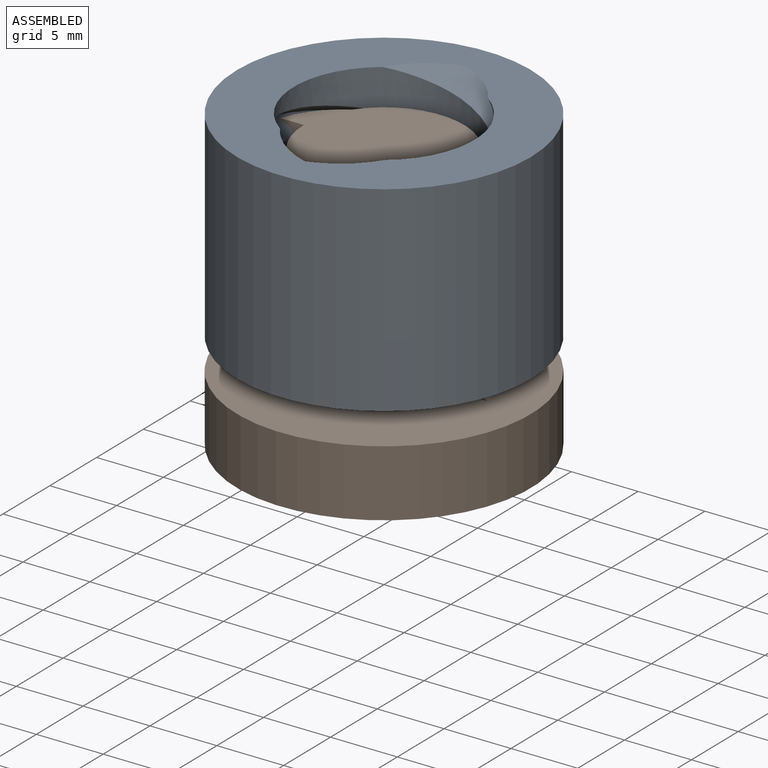
[diagram: assembled view]
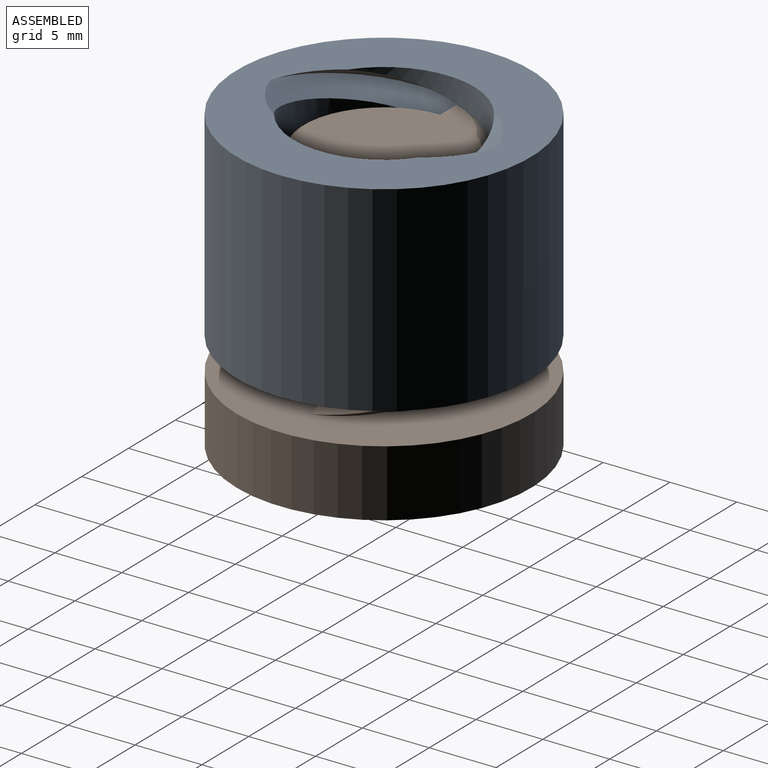
[diagram: assembled view, second angle]
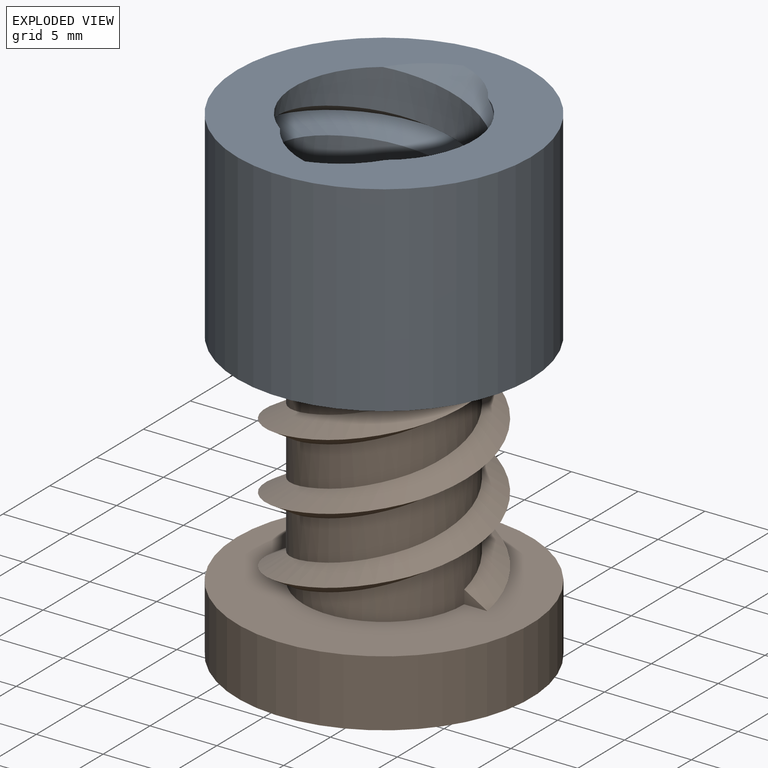
[diagram: exploded view]
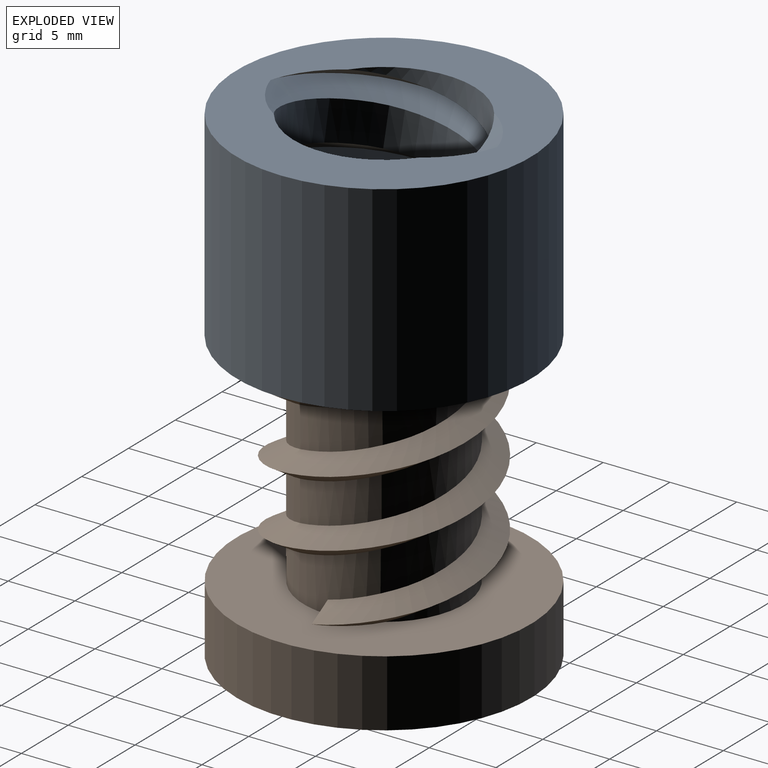
[diagram: exploded view, second angle]
ASSEMBLY  parts=2 mates=2
PART A: 9 faces, bbox 22x22x18.5 mm
  f0: cylinder r=6.75mm len=15mm, axis (0,0,-1), area 190.9mm2, adj f3,f6,f7,f8
  f1: cylinder r=11mm len=22mm, axis (0,0,-1), area 1036.7mm2, adj f7,f8
  f2: cylinder r=6.75mm len=15mm, axis (0,0,-1), area 190.9mm2, adj f4,f5,f7,f8
  f3: bspline ~18.5x16.96mm, area 145.9mm2, adj f0,f4,f7,f8
  f4: bspline ~17.25x16.96mm, area 145.9mm2, adj f2,f3,f7,f8
  f5: bspline ~18.5x16.96mm, area 145.9mm2, adj f2,f6,f7,f8
  f6: bspline ~17.25x16.96mm, area 145.9mm2, adj f0,f5,f7,f8
  f7: plane 22x22mm, normal (0,0,-1), area 221mm2, adj f0,f1,f2,f3,f4,f5,f6
  f8: plane 22x22mm, normal (0,0,1), area 221mm2, adj f0,f1,f2,f3,f4,f5,f6
PART B: 14 faces, bbox 22x22x21.3 mm
  f0: plane 1.73x1mm, normal (0,-1,0), area 0.9mm2, adj f5,f7,f11
  f1: bspline ~16x15.46mm, area 127.8mm2, adj f4,f7,f10,f11
  f2: plane 1.73x1mm, normal (0,1,0), area 0.9mm2, adj f4,f7,f13
  f3: bspline ~16x15.46mm, area 127.8mm2, adj f5,f7,f12,f13
  f4: cylinder r=6mm len=15mm, axis (0,0,-1), area 173.4mm2, adj f1,f2,f6,f7,f10,f13
  f5: cylinder r=6mm len=15mm, axis (0,0,-1), area 173.4mm2, adj f0,f3,f6,f7,f11,f12
  f6: plane 22x22mm, normal (0,0,1), area 259.9mm2, adj f4,f5,f8,f10,f11,f12,f13
  f7: plane 15.46x12mm, normal (0,0,1), area 120.3mm2, adj f0,f1,f2,f3,f4,f5
  f8: cylinder r=11mm len=22mm, axis (0,0,1), area 345.6mm2, adj f6,f9
  f9: plane 22x22mm, normal (0,0,-1), area 380.1mm2, adj f8
  f10: plane 1.73x1mm, normal (0,-1,0), area 0.9mm2, adj f1,f4,f6
  f11: bspline ~17.25x15.46mm, area 127.8mm2, adj f0,f1,f5,f6
  f12: plane 1.73x1mm, normal (0,1,0), area 0.9mm2, adj f3,f5,f6
  f13: bspline ~17.25x15.46mm, area 127.8mm2, adj f2,f3,f4,f6
PLACE A t=(1.52,-4.31,-0.12)mm
PLACE B t=(1.52,-4.31,0)mm
MATE parallel A.f7 <-> B.f8  axis (0,0,-1) through (5.47,1.16,2.38)mm
MATE slider A.f1 <-> B.f8  axis (0,0,-1) through (1.52,-4.31,9.88)mm
